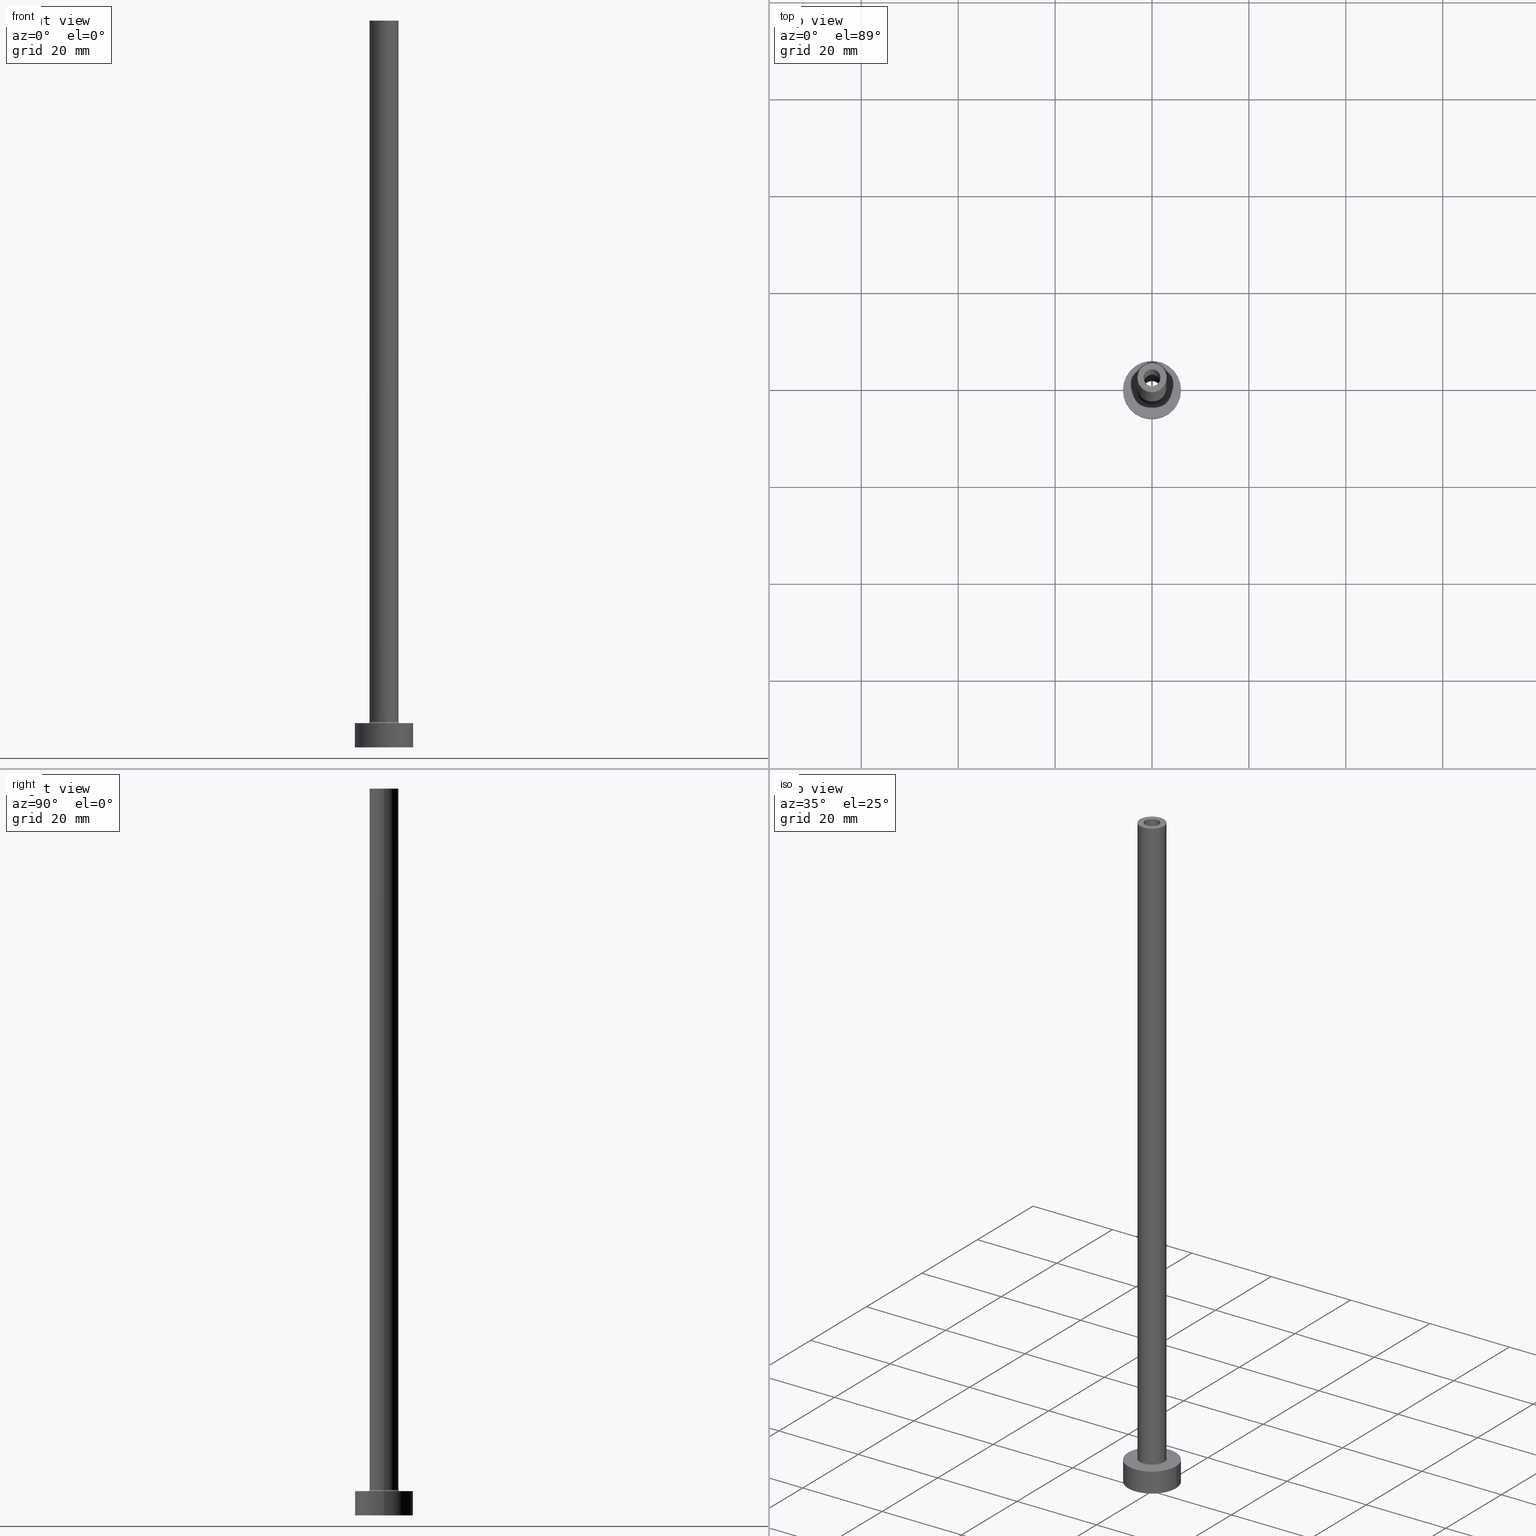
[diagram: canonical four-view strip — front | top / right | iso, engineering-drawing reading convention]
A machine part, canonical four-view strip (front | top / right | iso — engineering-drawing reading convention). The complete STEP part file that produces these views, byte-faithful:
ISO-10303-21;
HEADER;
FILE_DESCRIPTION (( 'STEP AP203' ),
    '1' );
FILE_NAME ('ff68.STEP',
    '2023-02-13T12:01:05',
    ( '' ),
    ( '' ),
    'SwSTEP 2.0',
    'SolidWorks 2019',
    '' );
FILE_SCHEMA (( 'CONFIG_CONTROL_DESIGN' ));
ENDSEC;

DATA;
#1 = AXIS2_PLACEMENT_3D ( 'NONE', #35, #388, #108 ) ;
#2 = DIRECTION ( 'NONE',  ( -1.000000000000000000, 0.000000000000000000, 0.000000000000000000 ) ) ;
#3 = FACE_OUTER_BOUND ( 'NONE', #355, .T. ) ;
#4 = DIRECTION ( 'NONE',  ( 1.000000000000000000, 0.000000000000000000, -0.000000000000000000 ) ) ;
#5 = ADVANCED_FACE ( 'NONE', ( #379, #96 ), #103, .F. ) ;
#6 = PERSON_AND_ORGANIZATION_ROLE ( 'design_supplier' ) ;
#7 = CIRCLE ( 'NONE', #254, 3.300000000000000266 ) ;
#8 = LOCAL_TIME ( 13, 1, 5.000000000000000000, #257 ) ;
#9 = DESIGN_CONTEXT ( 'detailed design', #280, 'design' ) ;
#10 = VERTEX_POINT ( 'NONE', #411 ) ;
#11 = CC_DESIGN_PERSON_AND_ORGANIZATION_ASSIGNMENT ( #161, #294, ( #416 ) ) ;
#12 = PERSON_AND_ORGANIZATION ( #150, #166 ) ;
#13 = ORIENTED_EDGE ( 'NONE', *, *, #41, .F. ) ;
#14 = CARTESIAN_POINT ( 'NONE',  ( 0.000000000000000000, 0.000000000000000000, 110.3740115370177648 ) ) ;
#15 = ORIENTED_EDGE ( 'NONE', *, *, #421, .T. ) ;
#16 = APPLICATION_PROTOCOL_DEFINITION ( 'international standard', 'config_control_design', 1994, #280 ) ;
#17 = AXIS2_PLACEMENT_3D ( 'NONE', #271, #456, #106 ) ;
#18 = ORIENTED_EDGE ( 'NONE', *, *, #145, .T. ) ;
#19 = ORIENTED_EDGE ( 'NONE', *, *, #20, .T. ) ;
#20 = EDGE_CURVE ( 'NONE', #249, #265, #339, .T. ) ;
#21 = DIRECTION ( 'NONE',  ( 0.000000000000000000, 0.000000000000000000, 1.000000000000000000 ) ) ;
#22 = APPROVAL_PERSON_ORGANIZATION ( #88, #307, #218 ) ;
#23 = ORIENTED_EDGE ( 'NONE', *, *, #211, .F. ) ;
#24 = EDGE_CURVE ( 'NONE', #400, #337, #293, .T. ) ;
#25 = CARTESIAN_POINT ( 'NONE',  ( 0.000000000000000000, 0.000000000000000000, 105.0000000000000000 ) ) ;
#26 = ORIENTED_EDGE ( 'NONE', *, *, #356, .T. ) ;
#27 = FACE_OUTER_BOUND ( 'NONE', #445, .T. ) ;
#28 = AXIS2_PLACEMENT_3D ( 'NONE', #313, #274, #63 ) ;
#29 = DIRECTION ( 'NONE',  ( 0.000000000000000000, 0.000000000000000000, 1.000000000000000000 ) ) ;
#30 = CC_DESIGN_SECURITY_CLASSIFICATION ( #77, ( #414 ) ) ;
#31 = CLOSED_SHELL ( 'NONE', ( #234, #378, #118, #316, #296, #111, #340, #201, #57, #156, #349, #446, #5, #392 ) ) ;
#32 = CARTESIAN_POINT ( 'NONE',  ( 0.000000000000000000, 0.000000000000000000, 150.0000000000000000 ) ) ;
#33 = PLANE ( 'NONE',  #114 ) ;
#34 = APPROVAL ( #158, 'NEUR�EN�' ) ;
#35 = CARTESIAN_POINT ( 'NONE',  ( 0.000000000000000000, 0.000000000000000000, 0.000000000000000000 ) ) ;
#36 = DIRECTION ( 'NONE',  ( 0.000000000000000000, 0.000000000000000000, 1.000000000000000000 ) ) ;
#37 = PRODUCT_DEFINITION ( 'NEZN�M�', '', #414, #9 ) ;
#38 = ORIENTED_EDGE ( 'NONE', *, *, #421, .F. ) ;
#39 = CARTESIAN_POINT ( 'NONE',  ( 0.000000000000000000, 0.000000000000000000, 0.000000000000000000 ) ) ;
#40 = DIRECTION ( 'NONE',  ( 0.000000000000000000, 0.000000000000000000, 1.000000000000000000 ) ) ;
#41 = EDGE_CURVE ( 'NONE', #439, #371, #423, .T. ) ;
#42 = LOCAL_TIME ( 13, 1, 5.000000000000000000, #49 ) ;
#43 = CIRCLE ( 'NONE', #278, 1.750000000000000000 ) ;
#44 = ORIENTED_EDGE ( 'NONE', *, *, #99, .T. ) ;
#45 = DIRECTION ( 'NONE',  ( 0.000000000000000000, 0.000000000000000000, -1.000000000000000000 ) ) ;
#46 = APPROVAL_STATUS ( 'not_yet_approved' ) ;
#47 = EDGE_LOOP ( 'NONE', ( #38, #87, #286, #305 ) ) ;
#48 = EDGE_LOOP ( 'NONE', ( #23, #138 ) ) ;
#49 = COORDINATED_UNIVERSAL_TIME_OFFSET ( 1, 0, .AHEAD. ) ;
#50 = VECTOR ( 'NONE', #380, 1000.000000000000000 ) ;
#51 = AXIS2_PLACEMENT_3D ( 'NONE', #97, #309, #336 ) ;
#52 = CARTESIAN_POINT ( 'NONE',  ( -1.750000000000000000, 0.000000000000000000, 105.0000000000000000 ) ) ;
#53 = EDGE_LOOP ( 'NONE', ( #308, #435, #126, #128 ) ) ;
#54 = CARTESIAN_POINT ( 'NONE',  ( -1.750000000000000000, 0.000000000000000000, 150.0000000000000000 ) ) ;
#55 = EDGE_LOOP ( 'NONE', ( #444, #393, #220, #364 ) ) ;
#56 = ORIENTED_EDGE ( 'NONE', *, *, #273, .T. ) ;
#57 = ADVANCED_FACE ( 'NONE', ( #171 ), #450, .T. ) ;
#58 = CIRCLE ( 'NONE', #405, 6.000000000000000888 ) ;
#59 = DIRECTION ( 'NONE',  ( 0.000000000000000000, 0.000000000000000000, -1.000000000000000000 ) ) ;
#60 = DIRECTION ( 'NONE',  ( 0.000000000000000000, 0.000000000000000000, 1.000000000000000000 ) ) ;
#61 = DIRECTION ( 'NONE',  ( 0.000000000000000000, 0.000000000000000000, -1.000000000000000000 ) ) ;
#62 = ADVANCED_BREP_SHAPE_REPRESENTATION ( 'ff68', ( #81, #362 ), #359 ) ;
#63 = DIRECTION ( 'NONE',  ( 1.000000000000000000, 0.000000000000000000, -0.000000000000000000 ) ) ;
#64 = DIRECTION ( 'NONE',  ( -1.000000000000000000, 0.000000000000000000, 0.000000000000000000 ) ) ;
#65 = CARTESIAN_POINT ( 'NONE',  ( 0.000000000000000000, 0.000000000000000000, 110.3740115370177648 ) ) ;
#66 = LINE ( 'NONE', #244, #50 ) ;
#67 = EDGE_CURVE ( 'NONE', #326, #439, #315, .T. ) ;
#68 = FACE_OUTER_BOUND ( 'NONE', #71, .T. ) ;
#69 = CARTESIAN_POINT ( 'NONE',  ( 3.300000000000000266, 0.000000000000000000, 4.999999999999999112 ) ) ;
#70 = FACE_OUTER_BOUND ( 'NONE', #47, .T. ) ;
#71 = EDGE_LOOP ( 'NONE', ( #200, #92 ) ) ;
#72 = FACE_OUTER_BOUND ( 'NONE', #53, .T. ) ;
#73 = FACE_OUTER_BOUND ( 'NONE', #123, .T. ) ;
#74 = ORIENTED_EDGE ( 'NONE', *, *, #105, .F. ) ;
#75 = CARTESIAN_POINT ( 'NONE',  ( 0.000000000000000000, 0.000000000000000000, 105.0000000000000000 ) ) ;
#76 = EDGE_CURVE ( 'NONE', #259, #10, #347, .T. ) ;
#77 = SECURITY_CLASSIFICATION ( '', '', #153 ) ;
#78 = APPROVAL_ROLE ( '' ) ;
#79 = EDGE_CURVE ( 'NONE', #174, #279, #140, .T. ) ;
#80 = EDGE_LOOP ( 'NONE', ( #266, #262, #18, #110 ) ) ;
#81 = MANIFOLD_SOLID_BREP ( 'Odebrat vysunut�m4', #31 ) ;
#82 = EDGE_LOOP ( 'NONE', ( #197, #320 ) ) ;
#83 = PERSON_AND_ORGANIZATION ( #150, #166 ) ;
#84 = CARTESIAN_POINT ( 'NONE',  ( 3.000000000000000444, 3.673940397442060361E-16, 5.299999999999998934 ) ) ;
#85 = TOROIDAL_SURFACE ( 'NONE', #303, 3.300000000000000266, 0.2999999999999999889 ) ;
#86 = AXIS2_PLACEMENT_3D ( 'NONE', #130, #137, #374 ) ;
#87 = ORIENTED_EDGE ( 'NONE', *, *, #67, .T. ) ;
#88 = PERSON_AND_ORGANIZATION ( #150, #166 ) ;
#89 = ORIENTED_EDGE ( 'NONE', *, *, #134, .T. ) ;
#90 = APPROVAL_ROLE ( '' ) ;
#91 = DIRECTION ( 'NONE',  ( 1.000000000000000000, 0.000000000000000000, 0.000000000000000000 ) ) ;
#92 = ORIENTED_EDGE ( 'NONE', *, *, #361, .F. ) ;
#93 = CIRCLE ( 'NONE', #203, 1.899999999999999911 ) ;
#94 = AXIS2_PLACEMENT_3D ( 'NONE', #136, #342, #240 ) ;
#95 = DIRECTION ( 'NONE',  ( 0.000000000000000000, 0.000000000000000000, 1.000000000000000000 ) ) ;
#96 = FACE_OUTER_BOUND ( 'NONE', #48, .T. ) ;
#97 = CARTESIAN_POINT ( 'NONE',  ( 3.300000000000000266, 0.000000000000000000, 5.299999999999998934 ) ) ;
#98 = DIRECTION ( 'NONE',  ( -0.000000000000000000, -0.000000000000000000, -1.000000000000000000 ) ) ;
#99 = EDGE_CURVE ( 'NONE', #249, #228, #232, .T. ) ;
#100 = DIRECTION ( 'NONE',  ( -0.000000000000000000, -0.000000000000000000, -1.000000000000000000 ) ) ;
#101 = AXIS2_PLACEMENT_3D ( 'NONE', #383, #36, #459 ) ;
#102 = CARTESIAN_POINT ( 'NONE',  ( -1.750000000000000000, 0.000000000000000000, 150.0000000000000000 ) ) ;
#103 = PLANE ( 'NONE',  #231 ) ;
#104 = DIRECTION ( 'NONE',  ( 1.224646799147353207E-16, 1.000000000000000000, -0.000000000000000000 ) ) ;
#105 = EDGE_CURVE ( 'NONE', #265, #226, #43, .T. ) ;
#106 = DIRECTION ( 'NONE',  ( 1.000000000000000000, 0.000000000000000000, 0.000000000000000000 ) ) ;
#107 = CC_DESIGN_APPROVAL ( #181, ( #77 ) ) ;
#108 = DIRECTION ( 'NONE',  ( 1.000000000000000000, 0.000000000000000000, 0.000000000000000000 ) ) ;
#109 = CYLINDRICAL_SURFACE ( 'NONE', #185, 3.000000000000000444 ) ;
#110 = ORIENTED_EDGE ( 'NONE', *, *, #386, .T. ) ;
#111 = ADVANCED_FACE ( 'NONE', ( #172 ), #170, .T. ) ;
#112 = DIRECTION ( 'NONE',  ( 0.000000000000000000, 0.000000000000000000, 1.000000000000000000 ) ) ;
#113 = CARTESIAN_POINT ( 'NONE',  ( 0.000000000000000000, 0.000000000000000000, 5.000000000000000000 ) ) ;
#114 = AXIS2_PLACEMENT_3D ( 'NONE', #178, #179, #317 ) ;
#115 = CC_DESIGN_APPROVAL ( #34, ( #37 ) ) ;
#116 = APPROVAL_DATE_TIME ( #396, #307 ) ;
#117 = PERSON_AND_ORGANIZATION_ROLE ( 'classification_officer' ) ;
#118 = ADVANCED_FACE ( 'NONE', ( #208 ), #223, .F. ) ;
#119 = ORIENTED_EDGE ( 'NONE', *, *, #252, .F. ) ;
#120 = DATE_AND_TIME ( #401, #221 ) ;
#121 = CARTESIAN_POINT ( 'NONE',  ( 0.000000000000000000, 0.000000000000000000, 150.0000000000000000 ) ) ;
#122 = CALENDAR_DATE ( 2023, 13, 2 ) ;
#123 = EDGE_LOOP ( 'NONE', ( #199, #275, #314, #195 ) ) ;
#124 = AXIS2_PLACEMENT_3D ( 'NONE', #318, #104, #149 ) ;
#125 = VECTOR ( 'NONE', #204, 1000.000000000000000 ) ;
#126 = ORIENTED_EDGE ( 'NONE', *, *, #311, .T. ) ;
#127 = EDGE_CURVE ( 'NONE', #328, #326, #131, .T. ) ;
#128 = ORIENTED_EDGE ( 'NONE', *, *, #76, .F. ) ;
#129 = CARTESIAN_POINT ( 'NONE',  ( -1.899999999999999911, 0.000000000000000000, 105.0000000000000000 ) ) ;
#130 = CARTESIAN_POINT ( 'NONE',  ( 0.000000000000000000, 0.000000000000000000, 150.0000000000000000 ) ) ;
#131 = CIRCLE ( 'NONE', #17, 3.000000000000000444 ) ;
#132 = AXIS2_PLACEMENT_3D ( 'NONE', #75, #112, #418 ) ;
#133 = LINE ( 'NONE', #270, #263 ) ;
#134 = EDGE_CURVE ( 'NONE', #241, #395, #276, .T. ) ;
#135 = AXIS2_PLACEMENT_3D ( 'NONE', #348, #345, #268 ) ;
#136 = CARTESIAN_POINT ( 'NONE',  ( 0.000000000000000000, 0.000000000000000000, 5.000000000000000000 ) ) ;
#137 = DIRECTION ( 'NONE',  ( -0.000000000000000000, -0.000000000000000000, -1.000000000000000000 ) ) ;
#138 = ORIENTED_EDGE ( 'NONE', *, *, #372, .F. ) ;
#139 = AXIS2_PLACEMENT_3D ( 'NONE', #155, #40, #301 ) ;
#140 = LINE ( 'NONE', #417, #125 ) ;
#141 = DIRECTION ( 'NONE',  ( 0.000000000000000000, 0.000000000000000000, -1.000000000000000000 ) ) ;
#142 = CARTESIAN_POINT ( 'NONE',  ( 0.000000000000000000, 0.000000000000000000, 5.000000000000000000 ) ) ;
#143 = FACE_OUTER_BOUND ( 'NONE', #192, .T. ) ;
#144 = DIRECTION ( 'NONE',  ( 0.000000000000000000, 0.000000000000000000, 1.000000000000000000 ) ) ;
#145 = EDGE_CURVE ( 'NONE', #241, #330, #66, .T. ) ;
#146 = CC_DESIGN_APPROVAL ( #307, ( #414 ) ) ;
#147 = DIRECTION ( 'NONE',  ( 0.000000000000000000, 0.000000000000000000, 1.000000000000000000 ) ) ;
#148 = PLANE ( 'NONE',  #284 ) ;
#149 = DIRECTION ( 'NONE',  ( -1.000000000000000000, 1.224646799147353207E-16, 0.000000000000000000 ) ) ;
#150 = PERSON ( 'NEUR�EN�', 'NEUR�EN�', 'NEUR�EN�', ('NEUR�EN�'), ('NEUR�EN�'), ('NEUR�EN�') ) ;
#151 = CIRCLE ( 'NONE', #190, 1.899999999999999911 ) ;
#152 = AXIS2_PLACEMENT_3D ( 'NONE', #187, #141, #2 ) ;
#153 = SECURITY_CLASSIFICATION_LEVEL ( 'unclassified' ) ;
#154 = AXIS2_PLACEMENT_3D ( 'NONE', #177, #29, #377 ) ;
#155 = CARTESIAN_POINT ( 'NONE',  ( 0.000000000000000000, 0.000000000000000000, 105.0000000000000000 ) ) ;
#156 = ADVANCED_FACE ( 'NONE', ( #210, #352 ), #33, .T. ) ;
#157 = ORIENTED_EDGE ( 'NONE', *, *, #24, .F. ) ;
#158 = APPROVAL_STATUS ( 'not_yet_approved' ) ;
#159 = COORDINATED_UNIVERSAL_TIME_OFFSET ( 1, 0, .AHEAD. ) ;
#160 = EDGE_LOOP ( 'NONE', ( #370, #334 ) ) ;
#161 = PERSON_AND_ORGANIZATION ( #150, #166 ) ;
#162 = PRODUCT_DEFINITION_SHAPE ( 'NONE', 'NONE',  #37 ) ;
#163 = EDGE_CURVE ( 'NONE', #395, #398, #327, .T. ) ;
#164 = ORIENTED_EDGE ( 'NONE', *, *, #273, .F. ) ;
#165 = DATE_TIME_ROLE ( 'creation_date' ) ;
#166 = ORGANIZATION ( 'NEUR�EN�', 'NEUR�EN�', '' ) ;
#167 = ORIENTED_EDGE ( 'NONE', *, *, #205, .F. ) ;
#168 = APPLICATION_PROTOCOL_DEFINITION ( 'international standard', 'config_control_design', 1994, #419 ) ;
#169 = ORIENTED_EDGE ( 'NONE', *, *, #24, .T. ) ;
#170 = CYLINDRICAL_SURFACE ( 'NONE', #376, 6.000000000000000888 ) ;
#171 = FACE_OUTER_BOUND ( 'NONE', #55, .T. ) ;
#172 = FACE_OUTER_BOUND ( 'NONE', #80, .T. ) ;
#173 = CARTESIAN_POINT ( 'NONE',  ( 1.750000000000000000, 2.143131898507867804E-16, 105.0000000000000000 ) ) ;
#174 = VERTEX_POINT ( 'NONE', #186 ) ;
#175 = PRODUCT_RELATED_PRODUCT_CATEGORY ( 'detail', '', ( #416 ) ) ;
#176 = APPROVAL_PERSON_ORGANIZATION ( #335, #34, #90 ) ;
#177 = CARTESIAN_POINT ( 'NONE',  ( 0.000000000000000000, 0.000000000000000000, 5.299999999999998934 ) ) ;
#178 = CARTESIAN_POINT ( 'NONE',  ( 0.000000000000000000, 0.000000000000000000, 150.0000000000000000 ) ) ;
#179 = DIRECTION ( 'NONE',  ( 0.000000000000000000, 0.000000000000000000, 1.000000000000000000 ) ) ;
#180 = ORIENTED_EDGE ( 'NONE', *, *, #127, .T. ) ;
#181 = APPROVAL ( #46, 'NEUR�EN�' ) ;
#182 = CARTESIAN_POINT ( 'NONE',  ( -6.000000000000000888, 0.000000000000000000, 0.000000000000000000 ) ) ;
#183 = CARTESIAN_POINT ( 'NONE',  ( 0.000000000000000000, 0.000000000000000000, 5.000000000000000000 ) ) ;
#184 = CARTESIAN_POINT ( 'NONE',  ( -3.300000000000000266, 4.041334437186266003E-16, 4.999999999999999112 ) ) ;
#185 = AXIS2_PLACEMENT_3D ( 'NONE', #387, #354, #319 ) ;
#186 = CARTESIAN_POINT ( 'NONE',  ( 1.899999999999999911, 2.326828918379971365E-16, 105.0000000000000000 ) ) ;
#187 = CARTESIAN_POINT ( 'NONE',  ( 0.000000000000000000, 0.000000000000000000, 150.0000000000000000 ) ) ;
#188 = FACE_BOUND ( 'NONE', #404, .T. ) ;
#189 = COORDINATED_UNIVERSAL_TIME_OFFSET ( 1, 0, .AHEAD. ) ;
#190 = AXIS2_PLACEMENT_3D ( 'NONE', #245, #60, #346 ) ;
#191 = ORIENTED_EDGE ( 'NONE', *, *, #205, .T. ) ;
#192 = EDGE_LOOP ( 'NONE', ( #300, #13, #56, #119 ) ) ;
#193 =( NAMED_UNIT ( * ) SI_UNIT ( $, .STERADIAN. ) SOLID_ANGLE_UNIT ( ) );
#194 = EDGE_CURVE ( 'NONE', #328, #371, #434, .T. ) ;
#195 = ORIENTED_EDGE ( 'NONE', *, *, #145, .F. ) ;
#196 = MECHANICAL_CONTEXT ( 'NONE', #419, 'mechanical' ) ;
#197 = ORIENTED_EDGE ( 'NONE', *, *, #105, .T. ) ;
#198 = CIRCLE ( 'NONE', #132, 1.899999999999999911 ) ;
#199 = ORIENTED_EDGE ( 'NONE', *, *, #367, .F. ) ;
#200 = ORIENTED_EDGE ( 'NONE', *, *, #386, .F. ) ;
#201 = ADVANCED_FACE ( 'NONE', ( #188, #68 ), #424, .F. ) ;
#202 = ORIENTED_EDGE ( 'NONE', *, *, #288, .T. ) ;
#203 = AXIS2_PLACEMENT_3D ( 'NONE', #212, #428, #248 ) ;
#204 = DIRECTION ( 'NONE',  ( 0.000000000000000000, 0.000000000000000000, -1.000000000000000000 ) ) ;
#205 = EDGE_CURVE ( 'NONE', #10, #279, #381, .T. ) ;
#206 = CARTESIAN_POINT ( 'NONE',  ( 0.000000000000000000, 0.000000000000000000, 105.0000000000000000 ) ) ;
#207 = CARTESIAN_POINT ( 'NONE',  ( 1.750000000000000000, 2.143131898507867804E-16, 150.0000000000000000 ) ) ;
#208 = FACE_OUTER_BOUND ( 'NONE', #366, .T. ) ;
#209 = CARTESIAN_POINT ( 'NONE',  ( 6.000000000000000888, 7.347880794884120722E-16, 5.000000000000000000 ) ) ;
#210 = FACE_BOUND ( 'NONE', #160, .T. ) ;
#211 = EDGE_CURVE ( 'NONE', #259, #174, #151, .T. ) ;
#212 = CARTESIAN_POINT ( 'NONE',  ( 0.000000000000000000, 0.000000000000000000, 0.000000000000000000 ) ) ;
#213 = CARTESIAN_POINT ( 'NONE',  ( -3.000000000000000444, 0.000000000000000000, 150.0000000000000000 ) ) ;
#214 = CYLINDRICAL_SURFACE ( 'NONE', #422, 1.899999999999999911 ) ;
#215 = CYLINDRICAL_SURFACE ( 'NONE', #431, 6.000000000000000888 ) ;
#216 = CARTESIAN_POINT ( 'NONE',  ( 0.000000000000000000, 0.000000000000000000, 5.299999999999998934 ) ) ;
#217 = AXIS2_PLACEMENT_3D ( 'NONE', #448, #95, #233 ) ;
#218 = APPROVAL_ROLE ( '' ) ;
#219 = ORIENTED_EDGE ( 'NONE', *, *, #311, .F. ) ;
#220 = ORIENTED_EDGE ( 'NONE', *, *, #194, .T. ) ;
#221 = LOCAL_TIME ( 13, 1, 5.000000000000000000, #189 ) ;
#222 = DATE_AND_TIME ( #227, #454 ) ;
#223 = TOROIDAL_SURFACE ( 'NONE', #442, 3.300000000000000266, 0.2999999999999999889 ) ;
#224 = EDGE_LOOP ( 'NONE', ( #238, #385, #19, #312 ) ) ;
#225 = DIRECTION ( 'NONE',  ( 1.000000000000000000, 0.000000000000000000, 0.000000000000000000 ) ) ;
#226 = VERTEX_POINT ( 'NONE', #173 ) ;
#227 = CALENDAR_DATE ( 2023, 13, 2 ) ;
#228 = VERTEX_POINT ( 'NONE', #207 ) ;
#229 = VECTOR ( 'NONE', #389, 1000.000000000000000 ) ;
#230 = APPROVAL_PERSON_ORGANIZATION ( #12, #181, #78 ) ;
#231 = AXIS2_PLACEMENT_3D ( 'NONE', #206, #272, #413 ) ;
#232 = CIRCLE ( 'NONE', #135, 1.750000000000000000 ) ;
#233 = DIRECTION ( 'NONE',  ( 1.000000000000000000, 0.000000000000000000, 0.000000000000000000 ) ) ;
#234 = ADVANCED_FACE ( 'NONE', ( #27 ), #292, .F. ) ;
#235 = DIRECTION ( 'NONE',  ( 1.000000000000000000, 0.000000000000000000, 0.000000000000000000 ) ) ;
#236 = APPROVAL_DATE_TIME ( #261, #181 ) ;
#237 = CARTESIAN_POINT ( 'NONE',  ( 3.000000000000000444, 3.673940397442060361E-16, 150.0000000000000000 ) ) ;
#238 = ORIENTED_EDGE ( 'NONE', *, *, #288, .F. ) ;
#239 = CIRCLE ( 'NONE', #139, 1.750000000000000000 ) ;
#240 = DIRECTION ( 'NONE',  ( 1.000000000000000000, 0.000000000000000000, 0.000000000000000000 ) ) ;
#241 = VERTEX_POINT ( 'NONE', #304 ) ;
#242 = DIRECTION ( 'NONE',  ( 1.000000000000000000, 0.000000000000000000, 0.000000000000000000 ) ) ;
#243 = CARTESIAN_POINT ( 'NONE',  ( -3.000000000000000444, 0.000000000000000000, 5.299999999999998934 ) ) ;
#244 = CARTESIAN_POINT ( 'NONE',  ( -6.000000000000000888, 0.000000000000000000, 5.000000000000000000 ) ) ;
#245 = CARTESIAN_POINT ( 'NONE',  ( 0.000000000000000000, 0.000000000000000000, 105.0000000000000000 ) ) ;
#246 = AXIS2_PLACEMENT_3D ( 'NONE', #121, #410, #331 ) ;
#247 = CARTESIAN_POINT ( 'NONE',  ( 0.000000000000000000, 0.000000000000000000, 5.299999999999998934 ) ) ;
#248 = DIRECTION ( 'NONE',  ( 1.000000000000000000, 0.000000000000000000, 0.000000000000000000 ) ) ;
#249 = VERTEX_POINT ( 'NONE', #54 ) ;
#250 = DIRECTION ( 'NONE',  ( 0.000000000000000000, 0.000000000000000000, 1.000000000000000000 ) ) ;
#251 = FACE_OUTER_BOUND ( 'NONE', #224, .T. ) ;
#252 = EDGE_CURVE ( 'NONE', #337, #400, #7, .T. ) ;
#253 = AXIS2_PLACEMENT_3D ( 'NONE', #142, #281, #420 ) ;
#254 = AXIS2_PLACEMENT_3D ( 'NONE', #403, #338, #91 ) ;
#255 = PERSON_AND_ORGANIZATION ( #150, #166 ) ;
#256 = ORIENTED_EDGE ( 'NONE', *, *, #20, .F. ) ;
#257 = COORDINATED_UNIVERSAL_TIME_OFFSET ( 1, 0, .AHEAD. ) ;
#258 = CC_DESIGN_PERSON_AND_ORGANIZATION_ASSIGNMENT ( #436, #391, ( #37 ) ) ;
#259 = VERTEX_POINT ( 'NONE', #129 ) ;
#260 = DIRECTION ( 'NONE',  ( 0.000000000000000000, 0.000000000000000000, 1.000000000000000000 ) ) ;
#261 = DATE_AND_TIME ( #122, #269 ) ;
#262 = ORIENTED_EDGE ( 'NONE', *, *, #134, .F. ) ;
#263 = VECTOR ( 'NONE', #407, 1000.000000000000000 ) ;
#264 = DIRECTION ( 'NONE',  ( 1.000000000000000000, 0.000000000000000000, 0.000000000000000000 ) ) ;
#265 = VERTEX_POINT ( 'NONE', #52 ) ;
#266 = ORIENTED_EDGE ( 'NONE', *, *, #163, .F. ) ;
#267 = CARTESIAN_POINT ( 'NONE',  ( 1.899999999999999911, 2.326828918379971365E-16, 0.000000000000000000 ) ) ;
#268 = DIRECTION ( 'NONE',  ( 1.000000000000000000, 0.000000000000000000, 0.000000000000000000 ) ) ;
#269 = LOCAL_TIME ( 13, 1, 5.000000000000000000, #159 ) ;
#270 = CARTESIAN_POINT ( 'NONE',  ( 1.750000000000000000, 2.143131898507867804E-16, 150.0000000000000000 ) ) ;
#271 = CARTESIAN_POINT ( 'NONE',  ( 0.000000000000000000, 0.000000000000000000, 150.0000000000000000 ) ) ;
#272 = DIRECTION ( 'NONE',  ( 0.000000000000000000, 0.000000000000000000, 1.000000000000000000 ) ) ;
#273 = EDGE_CURVE ( 'NONE', #439, #400, #397, .T. ) ;
#274 = DIRECTION ( 'NONE',  ( 0.000000000000000000, 0.000000000000000000, 1.000000000000000000 ) ) ;
#275 = ORIENTED_EDGE ( 'NONE', *, *, #163, .T. ) ;
#276 = CIRCLE ( 'NONE', #253, 6.000000000000000888 ) ;
#277 = AXIS2_PLACEMENT_3D ( 'NONE', #216, #455, #225 ) ;
#278 = AXIS2_PLACEMENT_3D ( 'NONE', #25, #21, #449 ) ;
#279 = VERTEX_POINT ( 'NONE', #267 ) ;
#280 = APPLICATION_CONTEXT ( 'configuration controlled 3d designs of mechanical parts and assemblies' ) ;
#281 = DIRECTION ( 'NONE',  ( 0.000000000000000000, 0.000000000000000000, 1.000000000000000000 ) ) ;
#282 = CYLINDRICAL_SURFACE ( 'NONE', #152, 1.750000000000000000 ) ;
#283 = EDGE_CURVE ( 'NONE', #228, #249, #390, .T. ) ;
#284 = AXIS2_PLACEMENT_3D ( 'NONE', #287, #144, #4 ) ;
#285 = VECTOR ( 'NONE', #100, 1000.000000000000000 ) ;
#286 = ORIENTED_EDGE ( 'NONE', *, *, #41, .T. ) ;
#287 = CARTESIAN_POINT ( 'NONE',  ( 0.000000000000000000, 0.000000000000000000, 5.000000000000000000 ) ) ;
#288 = EDGE_CURVE ( 'NONE', #228, #226, #133, .T. ) ;
#289 = DIRECTION ( 'NONE',  ( 1.000000000000000000, 0.000000000000000000, 0.000000000000000000 ) ) ;
#290 = UNCERTAINTY_MEASURE_WITH_UNIT (LENGTH_MEASURE( 1.000000000000000082E-05 ), #437, 'distance_accuracy_value', 'NONE');
#291 = AXIS2_PLACEMENT_3D ( 'NONE', #457, #412, #242 ) ;
#292 = CYLINDRICAL_SURFACE ( 'NONE', #246, 1.750000000000000000 ) ;
#293 = CIRCLE ( 'NONE', #94, 3.300000000000000266 ) ;
#294 = PERSON_AND_ORGANIZATION_ROLE ( 'design_owner' ) ;
#295 = DIRECTION ( 'NONE',  ( -0.000000000000000000, -0.000000000000000000, -1.000000000000000000 ) ) ;
#296 = ADVANCED_FACE ( 'NONE', ( #73 ), #215, .T. ) ;
#297 = EDGE_LOOP ( 'NONE', ( #180, #15 ) ) ;
#298 = DIRECTION ( 'NONE',  ( -1.000000000000000000, 0.000000000000000000, 0.000000000000000000 ) ) ;
#299 = CARTESIAN_POINT ( 'NONE',  ( 6.000000000000000888, 7.347880794884120722E-16, 5.000000000000000000 ) ) ;
#300 = ORIENTED_EDGE ( 'NONE', *, *, #356, .F. ) ;
#301 = DIRECTION ( 'NONE',  ( 1.000000000000000000, 0.000000000000000000, 0.000000000000000000 ) ) ;
#302 = ORIENTED_EDGE ( 'NONE', *, *, #76, .T. ) ;
#303 = AXIS2_PLACEMENT_3D ( 'NONE', #247, #358, #353 ) ;
#304 = CARTESIAN_POINT ( 'NONE',  ( -6.000000000000000888, 0.000000000000000000, 5.000000000000000000 ) ) ;
#305 = ORIENTED_EDGE ( 'NONE', *, *, #194, .F. ) ;
#306 = APPROVAL_DATE_TIME ( #222, #34 ) ;
#307 = APPROVAL ( #369, 'NEUR�EN�' ) ;
#308 = ORIENTED_EDGE ( 'NONE', *, *, #211, .T. ) ;
#309 = DIRECTION ( 'NONE',  ( 0.000000000000000000, -1.000000000000000000, 0.000000000000000000 ) ) ;
#310 = ORIENTED_EDGE ( 'NONE', *, *, #367, .T. ) ;
#311 = EDGE_CURVE ( 'NONE', #279, #10, #93, .T. ) ;
#312 = ORIENTED_EDGE ( 'NONE', *, *, #452, .F. ) ;
#313 = CARTESIAN_POINT ( 'NONE',  ( 0.000000000000000000, 0.000000000000000000, 0.000000000000000000 ) ) ;
#314 = ORIENTED_EDGE ( 'NONE', *, *, #361, .T. ) ;
#315 = LINE ( 'NONE', #237, #285 ) ;
#316 = ADVANCED_FACE ( 'NONE', ( #70 ), #109, .T. ) ;
#317 = DIRECTION ( 'NONE',  ( 1.000000000000000000, 0.000000000000000000, -0.000000000000000000 ) ) ;
#318 = CARTESIAN_POINT ( 'NONE',  ( -3.300000000000000266, 4.041334437186266003E-16, 5.299999999999998934 ) ) ;
#319 = DIRECTION ( 'NONE',  ( -1.000000000000000000, 0.000000000000000000, 0.000000000000000000 ) ) ;
#320 = ORIENTED_EDGE ( 'NONE', *, *, #452, .T. ) ;
#321 = DIRECTION ( 'NONE',  ( -1.000000000000000000, 0.000000000000000000, 0.000000000000000000 ) ) ;
#322 = FACE_BOUND ( 'NONE', #443, .T. ) ;
#323 = DATE_AND_TIME ( #394, #8 ) ;
#324 = PERSON_AND_ORGANIZATION_ROLE ( 'creator' ) ;
#325 = CIRCLE ( 'NONE', #350, 3.000000000000000444 ) ;
#326 = VERTEX_POINT ( 'NONE', #357 ) ;
#327 = LINE ( 'NONE', #299, #447 ) ;
#328 = VERTEX_POINT ( 'NONE', #460 ) ;
#329 = CYLINDRICAL_SURFACE ( 'NONE', #441, 1.899999999999999911 ) ;
#330 = VERTEX_POINT ( 'NONE', #182 ) ;
#331 = DIRECTION ( 'NONE',  ( -1.000000000000000000, 0.000000000000000000, 0.000000000000000000 ) ) ;
#332 = CIRCLE ( 'NONE', #124, 0.2999999999999999334 ) ;
#333 = CC_DESIGN_PERSON_AND_ORGANIZATION_ASSIGNMENT ( #433, #117, ( #77 ) ) ;
#334 = ORIENTED_EDGE ( 'NONE', *, *, #283, .F. ) ;
#335 = PERSON_AND_ORGANIZATION ( #150, #166 ) ;
#336 = DIRECTION ( 'NONE',  ( 0.000000000000000000, 0.000000000000000000, -1.000000000000000000 ) ) ;
#337 = VERTEX_POINT ( 'NONE', #184 ) ;
#338 = DIRECTION ( 'NONE',  ( -0.000000000000000000, -0.000000000000000000, -1.000000000000000000 ) ) ;
#339 = LINE ( 'NONE', #102, #363 ) ;
#340 = ADVANCED_FACE ( 'NONE', ( #322, #3 ), #148, .T. ) ;
#341 = SHAPE_DEFINITION_REPRESENTATION ( #162, #62 ) ;
#342 = DIRECTION ( 'NONE',  ( -0.000000000000000000, -0.000000000000000000, -1.000000000000000000 ) ) ;
#343 = CIRCLE ( 'NONE', #101, 6.000000000000000888 ) ;
#344 = VECTOR ( 'NONE', #59, 1000.000000000000000 ) ;
#345 = DIRECTION ( 'NONE',  ( 0.000000000000000000, 0.000000000000000000, 1.000000000000000000 ) ) ;
#346 = DIRECTION ( 'NONE',  ( 1.000000000000000000, 0.000000000000000000, 0.000000000000000000 ) ) ;
#347 = LINE ( 'NONE', #453, #344 ) ;
#348 = CARTESIAN_POINT ( 'NONE',  ( 0.000000000000000000, 0.000000000000000000, 150.0000000000000000 ) ) ;
#349 = ADVANCED_FACE ( 'NONE', ( #143 ), #85, .F. ) ;
#350 = AXIS2_PLACEMENT_3D ( 'NONE', #32, #147, #427 ) ;
#351 = DIRECTION ( 'NONE',  ( 0.000000000000000000, 0.000000000000000000, -1.000000000000000000 ) ) ;
#352 = FACE_OUTER_BOUND ( 'NONE', #297, .T. ) ;
#353 = DIRECTION ( 'NONE',  ( 1.000000000000000000, 0.000000000000000000, 0.000000000000000000 ) ) ;
#354 = DIRECTION ( 'NONE',  ( -0.000000000000000000, -0.000000000000000000, -1.000000000000000000 ) ) ;
#355 = EDGE_LOOP ( 'NONE', ( #89, #310 ) ) ;
#356 = EDGE_CURVE ( 'NONE', #371, #337, #332, .T. ) ;
#357 = CARTESIAN_POINT ( 'NONE',  ( 3.000000000000000444, 3.673940397442060361E-16, 150.0000000000000000 ) ) ;
#358 = DIRECTION ( 'NONE',  ( 0.000000000000000000, 0.000000000000000000, 1.000000000000000000 ) ) ;
#359 =( GEOMETRIC_REPRESENTATION_CONTEXT ( 3 ) GLOBAL_UNCERTAINTY_ASSIGNED_CONTEXT ( ( #290 ) ) GLOBAL_UNIT_ASSIGNED_CONTEXT ( ( #437, #430, #193 ) ) REPRESENTATION_CONTEXT ( 'NONE', 'WORKASPACE' ) );
#360 = ORIENTED_EDGE ( 'NONE', *, *, #252, .T. ) ;
#361 = EDGE_CURVE ( 'NONE', #398, #330, #382, .T. ) ;
#362 = AXIS2_PLACEMENT_3D ( 'NONE', #39, #260, #264 ) ;
#363 = VECTOR ( 'NONE', #61, 1000.000000000000000 ) ;
#364 = ORIENTED_EDGE ( 'NONE', *, *, #438, .T. ) ;
#365 = CALENDAR_DATE ( 2023, 13, 2 ) ;
#366 = EDGE_LOOP ( 'NONE', ( #461, #26, #157, #164 ) ) ;
#367 = EDGE_CURVE ( 'NONE', #395, #241, #58, .T. ) ;
#368 = ORIENTED_EDGE ( 'NONE', *, *, #79, .F. ) ;
#369 = APPROVAL_STATUS ( 'not_yet_approved' ) ;
#370 = ORIENTED_EDGE ( 'NONE', *, *, #99, .F. ) ;
#371 = VERTEX_POINT ( 'NONE', #243 ) ;
#372 = EDGE_CURVE ( 'NONE', #174, #259, #198, .T. ) ;
#373 = CARTESIAN_POINT ( 'NONE',  ( 0.000000000000000000, 0.000000000000000000, 5.000000000000000000 ) ) ;
#374 = DIRECTION ( 'NONE',  ( -1.000000000000000000, 0.000000000000000000, 0.000000000000000000 ) ) ;
#375 = CIRCLE ( 'NONE', #277, 3.000000000000000444 ) ;
#376 = AXIS2_PLACEMENT_3D ( 'NONE', #373, #98, #64 ) ;
#377 = DIRECTION ( 'NONE',  ( 1.000000000000000000, 0.000000000000000000, 0.000000000000000000 ) ) ;
#378 = ADVANCED_FACE ( 'NONE', ( #72 ), #214, .F. ) ;
#379 = FACE_BOUND ( 'NONE', #82, .T. ) ;
#380 = DIRECTION ( 'NONE',  ( -0.000000000000000000, -0.000000000000000000, -1.000000000000000000 ) ) ;
#381 = CIRCLE ( 'NONE', #291, 1.899999999999999911 ) ;
#382 = CIRCLE ( 'NONE', #1, 6.000000000000000888 ) ;
#383 = CARTESIAN_POINT ( 'NONE',  ( 0.000000000000000000, 0.000000000000000000, 0.000000000000000000 ) ) ;
#384 = DIRECTION ( 'NONE',  ( -0.000000000000000000, -0.000000000000000000, -1.000000000000000000 ) ) ;
#385 = ORIENTED_EDGE ( 'NONE', *, *, #283, .T. ) ;
#386 = EDGE_CURVE ( 'NONE', #330, #398, #343, .T. ) ;
#387 = CARTESIAN_POINT ( 'NONE',  ( 0.000000000000000000, 0.000000000000000000, 150.0000000000000000 ) ) ;
#388 = DIRECTION ( 'NONE',  ( 0.000000000000000000, 0.000000000000000000, 1.000000000000000000 ) ) ;
#389 = DIRECTION ( 'NONE',  ( -0.000000000000000000, -0.000000000000000000, -1.000000000000000000 ) ) ;
#390 = CIRCLE ( 'NONE', #217, 1.750000000000000000 ) ;
#391 = PERSON_AND_ORGANIZATION_ROLE ( 'creator' ) ;
#392 = ADVANCED_FACE ( 'NONE', ( #251 ), #282, .F. ) ;
#393 = ORIENTED_EDGE ( 'NONE', *, *, #127, .F. ) ;
#394 = CALENDAR_DATE ( 2023, 13, 2 ) ;
#395 = VERTEX_POINT ( 'NONE', #209 ) ;
#396 = DATE_AND_TIME ( #365, #42 ) ;
#397 = CIRCLE ( 'NONE', #51, 0.2999999999999999334 ) ;
#398 = VERTEX_POINT ( 'NONE', #429 ) ;
#399 = CC_DESIGN_DATE_AND_TIME_ASSIGNMENT ( #120, #165, ( #37 ) ) ;
#400 = VERTEX_POINT ( 'NONE', #69 ) ;
#401 = CALENDAR_DATE ( 2023, 13, 2 ) ;
#402 = FACE_OUTER_BOUND ( 'NONE', #451, .T. ) ;
#403 = CARTESIAN_POINT ( 'NONE',  ( 0.000000000000000000, 0.000000000000000000, 5.000000000000000000 ) ) ;
#404 = EDGE_LOOP ( 'NONE', ( #167, #219 ) ) ;
#405 = AXIS2_PLACEMENT_3D ( 'NONE', #183, #250, #289 ) ;
#406 = DIRECTION ( 'NONE',  ( 0.000000000000000000, 0.000000000000000000, 1.000000000000000000 ) ) ;
#407 = DIRECTION ( 'NONE',  ( 0.000000000000000000, 0.000000000000000000, -1.000000000000000000 ) ) ;
#408 = CC_DESIGN_PERSON_AND_ORGANIZATION_ASSIGNMENT ( #83, #6, ( #414 ) ) ;
#409 = CARTESIAN_POINT ( 'NONE',  ( 0.000000000000000000, 0.000000000000000000, 5.299999999999998934 ) ) ;
#410 = DIRECTION ( 'NONE',  ( 0.000000000000000000, 0.000000000000000000, -1.000000000000000000 ) ) ;
#411 = CARTESIAN_POINT ( 'NONE',  ( -1.899999999999999911, 0.000000000000000000, 0.000000000000000000 ) ) ;
#412 = DIRECTION ( 'NONE',  ( -0.000000000000000000, -0.000000000000000000, -1.000000000000000000 ) ) ;
#413 = DIRECTION ( 'NONE',  ( 1.000000000000000000, 0.000000000000000000, -0.000000000000000000 ) ) ;
#414 = PRODUCT_DEFINITION_FORMATION_WITH_SPECIFIED_SOURCE ( 'LIBOVOLN�', '', #416, .NOT_KNOWN. ) ;
#415 = CC_DESIGN_PERSON_AND_ORGANIZATION_ASSIGNMENT ( #255, #324, ( #414 ) ) ;
#416 = PRODUCT ( 'ff68', 'ff68', '', ( #196 ) ) ;
#417 = CARTESIAN_POINT ( 'NONE',  ( 1.899999999999999911, 2.326828918379971365E-16, 110.3740115370177648 ) ) ;
#418 = DIRECTION ( 'NONE',  ( 1.000000000000000000, 0.000000000000000000, 0.000000000000000000 ) ) ;
#419 = APPLICATION_CONTEXT ( 'configuration controlled 3d designs of mechanical parts and assemblies' ) ;
#420 = DIRECTION ( 'NONE',  ( 1.000000000000000000, 0.000000000000000000, 0.000000000000000000 ) ) ;
#421 = EDGE_CURVE ( 'NONE', #326, #328, #325, .T. ) ;
#422 = AXIS2_PLACEMENT_3D ( 'NONE', #65, #351, #321 ) ;
#423 = CIRCLE ( 'NONE', #154, 3.000000000000000444 ) ;
#424 = PLANE ( 'NONE',  #28 ) ;
#425 = DIRECTION ( 'NONE',  ( -1.000000000000000000, 0.000000000000000000, 0.000000000000000000 ) ) ;
#426 = ORIENTED_EDGE ( 'NONE', *, *, #372, .T. ) ;
#427 = DIRECTION ( 'NONE',  ( 1.000000000000000000, 0.000000000000000000, 0.000000000000000000 ) ) ;
#428 = DIRECTION ( 'NONE',  ( -0.000000000000000000, -0.000000000000000000, -1.000000000000000000 ) ) ;
#429 = CARTESIAN_POINT ( 'NONE',  ( 6.000000000000000888, 7.347880794884120722E-16, 0.000000000000000000 ) ) ;
#430 =( NAMED_UNIT ( * ) PLANE_ANGLE_UNIT ( ) SI_UNIT ( $, .RADIAN. ) );
#431 = AXIS2_PLACEMENT_3D ( 'NONE', #113, #384, #425 ) ;
#432 = DATE_TIME_ROLE ( 'classification_date' ) ;
#433 = PERSON_AND_ORGANIZATION ( #150, #166 ) ;
#434 = LINE ( 'NONE', #213, #229 ) ;
#435 = ORIENTED_EDGE ( 'NONE', *, *, #79, .T. ) ;
#436 = PERSON_AND_ORGANIZATION ( #150, #166 ) ;
#437 =( LENGTH_UNIT ( ) NAMED_UNIT ( * ) SI_UNIT ( .MILLI., .METRE. ) );
#438 = EDGE_CURVE ( 'NONE', #371, #439, #375, .T. ) ;
#439 = VERTEX_POINT ( 'NONE', #84 ) ;
#440 = COORDINATED_UNIVERSAL_TIME_OFFSET ( 1, 0, .AHEAD. ) ;
#441 = AXIS2_PLACEMENT_3D ( 'NONE', #14, #45, #298 ) ;
#442 = AXIS2_PLACEMENT_3D ( 'NONE', #409, #406, #235 ) ;
#443 = EDGE_LOOP ( 'NONE', ( #169, #360 ) ) ;
#444 = ORIENTED_EDGE ( 'NONE', *, *, #67, .F. ) ;
#445 = EDGE_LOOP ( 'NONE', ( #44, #202, #74, #256 ) ) ;
#446 = ADVANCED_FACE ( 'NONE', ( #402 ), #329, .F. ) ;
#447 = VECTOR ( 'NONE', #295, 1000.000000000000000 ) ;
#448 = CARTESIAN_POINT ( 'NONE',  ( 0.000000000000000000, 0.000000000000000000, 150.0000000000000000 ) ) ;
#449 = DIRECTION ( 'NONE',  ( 1.000000000000000000, 0.000000000000000000, 0.000000000000000000 ) ) ;
#450 = CYLINDRICAL_SURFACE ( 'NONE', #86, 3.000000000000000444 ) ;
#451 = EDGE_LOOP ( 'NONE', ( #368, #426, #302, #191 ) ) ;
#452 = EDGE_CURVE ( 'NONE', #226, #265, #239, .T. ) ;
#453 = CARTESIAN_POINT ( 'NONE',  ( -1.899999999999999911, 0.000000000000000000, 110.3740115370177648 ) ) ;
#454 = LOCAL_TIME ( 13, 1, 5.000000000000000000, #440 ) ;
#455 = DIRECTION ( 'NONE',  ( 0.000000000000000000, 0.000000000000000000, 1.000000000000000000 ) ) ;
#456 = DIRECTION ( 'NONE',  ( 0.000000000000000000, 0.000000000000000000, 1.000000000000000000 ) ) ;
#457 = CARTESIAN_POINT ( 'NONE',  ( 0.000000000000000000, 0.000000000000000000, 0.000000000000000000 ) ) ;
#458 = CC_DESIGN_DATE_AND_TIME_ASSIGNMENT ( #323, #432, ( #77 ) ) ;
#459 = DIRECTION ( 'NONE',  ( 1.000000000000000000, 0.000000000000000000, 0.000000000000000000 ) ) ;
#460 = CARTESIAN_POINT ( 'NONE',  ( -3.000000000000000444, 0.000000000000000000, 150.0000000000000000 ) ) ;
#461 = ORIENTED_EDGE ( 'NONE', *, *, #438, .F. ) ;
ENDSEC;
END-ISO-10303-21;
